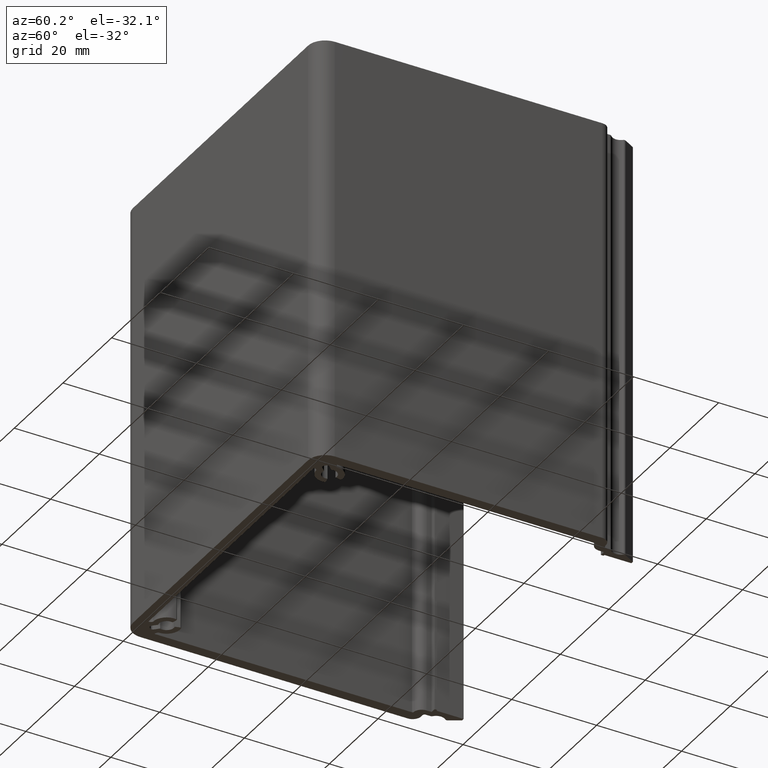
[diagram: clean part render]
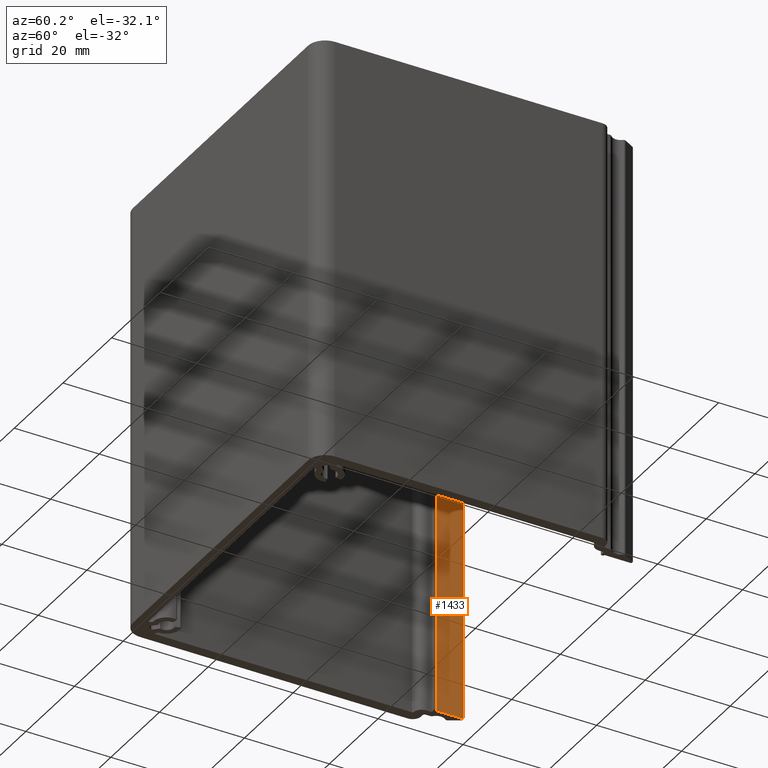
[diagram: same view with one face highlighted and labeled with its STEP entity id]
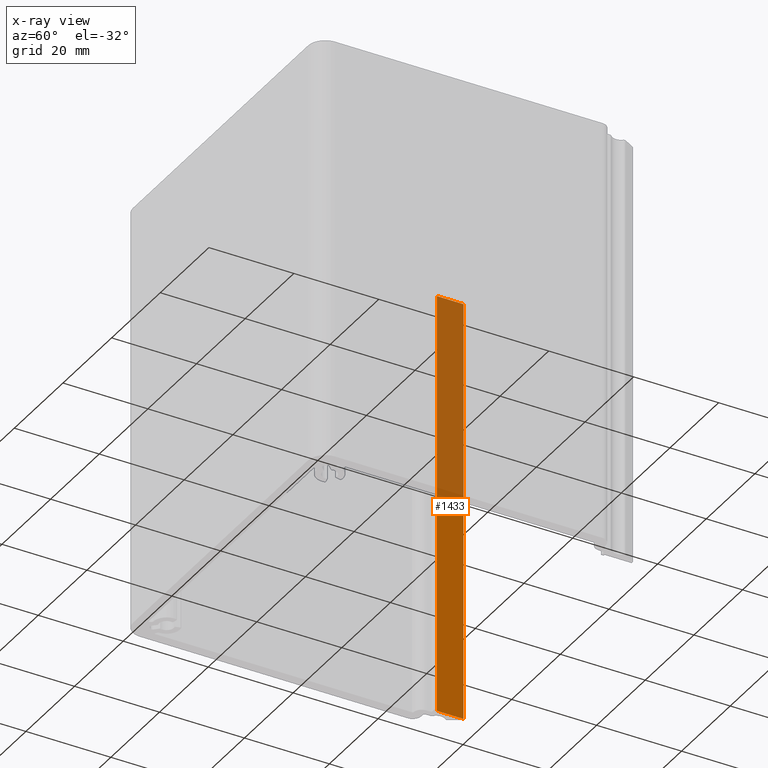
[diagram: x-ray of the same camera — body ghosted, the highlighted face saturated]
A machine part, auxiliary view. The second image highlights one B-rep face of the part: STEP entity #1433.
The next image is the same camera in x-ray: the body ghosted, the highlighted face saturated — about 48% of this face is hidden behind the body in this view.
In plain terms, the highlighted planar face has unit normal (1, 0, 0).
Its self-contained STEP definition (entity closure, byte-faithful):
#17=PLANE('',#1515);
#59=FACE_OUTER_BOUND('',#135,.T.);
#135=EDGE_LOOP('',(#965,#966,#967,#968));
#215=LINE('',#2130,#365);
#216=LINE('',#2133,#366);
#217=LINE('',#2135,#367);
#218=LINE('',#2136,#368);
#365=VECTOR('',#1681,100.);
#366=VECTOR('',#1684,6.32731081273419);
#367=VECTOR('',#1685,6.32731081273419);
#368=VECTOR('',#1686,100.);
#587=VERTEX_POINT('',#2126);
#588=VERTEX_POINT('',#2128);
#589=VERTEX_POINT('',#2132);
#590=VERTEX_POINT('',#2134);
#739=EDGE_CURVE('',#587,#588,#215,.T.);
#740=EDGE_CURVE('',#589,#587,#216,.T.);
#741=EDGE_CURVE('',#590,#588,#217,.T.);
#742=EDGE_CURVE('',#589,#590,#218,.T.);
#965=ORIENTED_EDGE('',*,*,#740,.T.);
#966=ORIENTED_EDGE('',*,*,#739,.T.);
#967=ORIENTED_EDGE('',*,*,#741,.F.);
#968=ORIENTED_EDGE('',*,*,#742,.F.);
#1433=ADVANCED_FACE('',(#59),#17,.T.);
#1515=AXIS2_PLACEMENT_3D('',#2131,#1682,#1683);
#1681=DIRECTION('',(0.,0.,1.));
#1682=DIRECTION('center_axis',(1.,0.,0.));
#1683=DIRECTION('ref_axis',(0.,1.,0.));
#1684=DIRECTION('',(0.,1.,0.));
#1685=DIRECTION('',(0.,1.,0.));
#1686=DIRECTION('',(0.,0.,1.));
#2126=CARTESIAN_POINT('',(-34.499999991569,76.9999999988474,0.));
#2128=CARTESIAN_POINT('',(-34.499999991569,76.9999999988474,100.));
#2130=CARTESIAN_POINT('',(-34.499999991569,76.9999999988474,0.));
#2131=CARTESIAN_POINT('Origin',(-34.499999991569,70.6726891861132,0.));
#2132=CARTESIAN_POINT('',(-34.499999991569,70.6726891861132,0.));
#2133=CARTESIAN_POINT('',(-34.499999991569,70.6726891861132,0.));
#2134=CARTESIAN_POINT('',(-34.499999991569,70.6726891861132,100.));
#2135=CARTESIAN_POINT('',(-34.499999991569,70.6726891861132,100.));
#2136=CARTESIAN_POINT('',(-34.499999991569,70.6726891861132,0.));